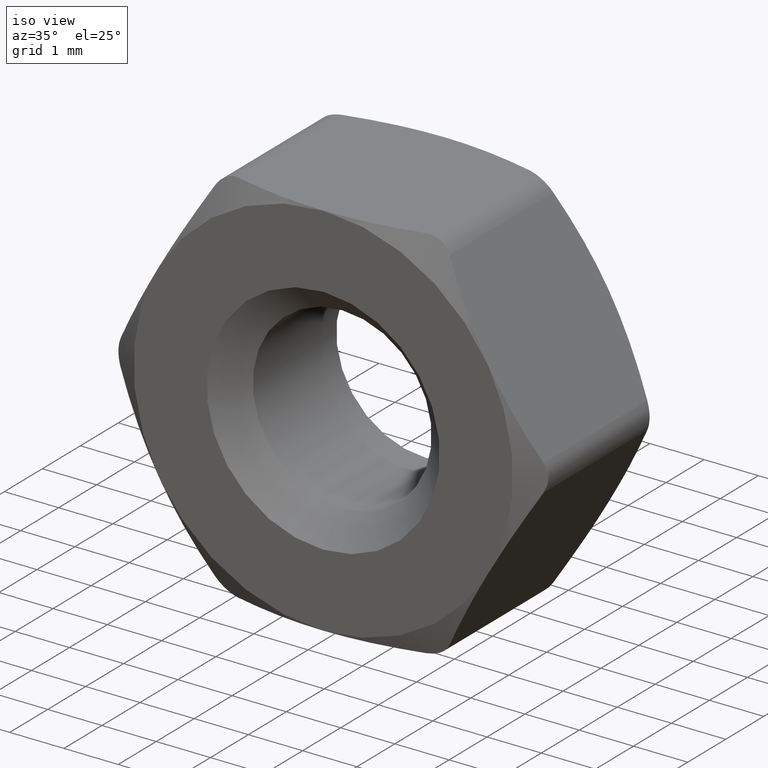
[diagram: clean part render]
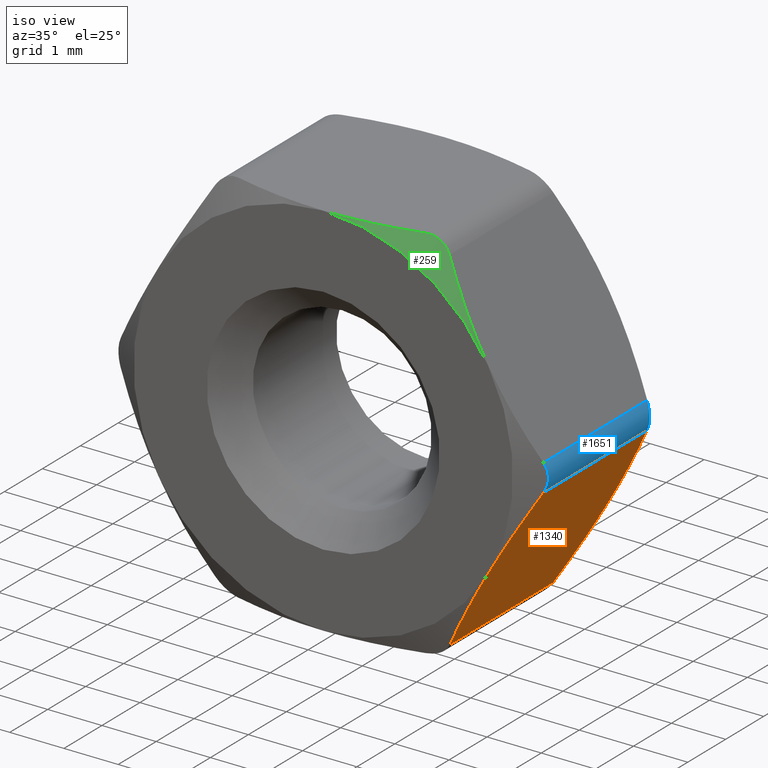
[diagram: same view with three faces highlighted in distinct colors, each labeled with its STEP entity id]
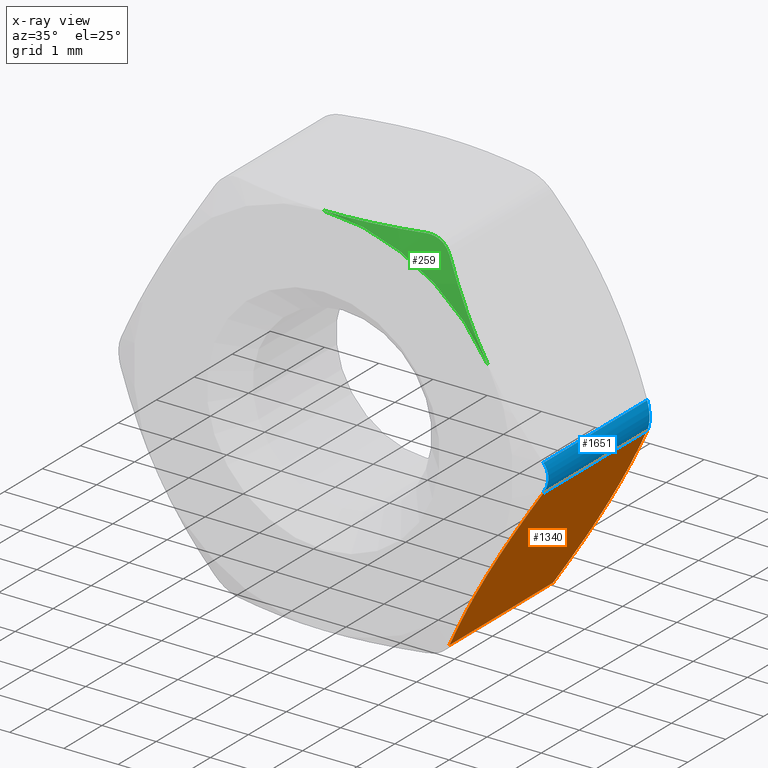
[diagram: x-ray of the same camera — body ghosted, the three highlighted faces saturated]
A machine part, iso view with three faces highlighted in distinct colors.
The next image is the same camera in x-ray (body ghosted, the three faces saturated) — at least one of them is partly hidden behind the body in this view.
Their STEP definitions:

[orange] entity #1340 — the highlighted planar face has unit normal (-0.866, 0, 0.5).
#8 = CARTESIAN_POINT ( 'NONE',  ( 3.755510572827375900, 1.438623072130314200, -0.4952648795008763300 ) ) ;
#100 = ORIENTED_EDGE ( 'NONE', *, *, #1420, .T. ) ;
#146 = B_SPLINE_CURVE_WITH_KNOTS ( 'NONE', 3,
 ( #1572, #1889, #465, #928 ),
 .UNSPECIFIED., .F., .F.,
 ( 4, 4 ),
 ( 0.0002971722857521893900, 0.002044882221487533200 ),
 .UNSPECIFIED. ) ;
#156 = CARTESIAN_POINT ( 'NONE',  ( 3.897114317033258500, -1.366101065750564100, -0.2499999999943001400 ) ) ;
#209 = CARTESIAN_POINT ( 'NONE',  ( 3.897114317029971800, 1.366101065752247200, -0.2499999999999927000 ) ) ;
#331 = VERTEX_POINT ( 'NONE', #997 ) ;
#334 = CARTESIAN_POINT ( 'NONE',  ( 3.612771519549222300, 1.497437231825316000, -0.7424961720029192900 ) ) ;
#352 = FACE_OUTER_BOUND ( 'NONE', #1218, .T. ) ;
#358 = VERTEX_POINT ( 'NONE', #209 ) ;
#360 = EDGE_CURVE ( 'NONE', #841, #331, #607, .T. ) ;
#465 = CARTESIAN_POINT ( 'NONE',  ( 2.736813175116610300, 1.600000000000004800, -2.259700529874122800 ) ) ;
#470 = CARTESIAN_POINT ( 'NONE',  ( 3.031088913245535600, 1.599999999999999900, -1.749999999999998400 ) ) ;
#545 = DIRECTION ( 'NONE',  ( -0.0000000000000000000, 1.000000000000000000, -0.0000000000000000000 ) ) ;
#562 = AXIS2_PLACEMENT_3D ( 'NONE', #1703, #1895, #768 ) ;
#599 = VERTEX_POINT ( 'NONE', #470 ) ;
#607 = B_SPLINE_CURVE_WITH_KNOTS ( 'NONE', 3,
 ( #989, #1801, #689, #1868 ),
 .UNSPECIFIED., .F., .F.,
 ( 4, 4 ),
 ( 0.0002971722857521896000, 0.002044882221487531500 ),
 .UNSPECIFIED. ) ;
#645 = CARTESIAN_POINT ( 'NONE',  ( 2.449406306941841000, -1.497437231825316600, -2.757503827997073800 ) ) ;
#646 = ORIENTED_EDGE ( 'NONE', *, *, #1599, .T. ) ;
#688 = ORIENTED_EDGE ( 'NONE', *, *, #914, .T. ) ;
#689 = CARTESIAN_POINT ( 'NONE',  ( 3.325364651374453000, -1.600000000000004500, -1.240299470125870300 ) ) ;
#768 = DIRECTION ( 'NONE',  ( 0.4999999999999997800, 0.0000000000000000000, 0.8660254037844387100 ) ) ;
#814 = CARTESIAN_POINT ( 'NONE',  ( 2.737935425120993300, -1.578227301213956900, -2.257756735847737500 ) ) ;
#841 = VERTEX_POINT ( 'NONE', #156 ) ;
#843 = VERTEX_POINT ( 'NONE', #2064 ) ;
#914 = EDGE_CURVE ( 'NONE', #599, #358, #1823, .T. ) ;
#928 = CARTESIAN_POINT ( 'NONE',  ( 3.031088913245535600, 1.599999999999999900, -1.749999999999998400 ) ) ;
#942 = CARTESIAN_POINT ( 'NONE',  ( 3.324242401370070400, 1.578227301213956900, -1.242243264152256700 ) ) ;
#967 = CARTESIAN_POINT ( 'NONE',  ( 3.897114317029971800, 1.366101065752247200, -0.2499999999999927000 ) ) ;
#989 = CARTESIAN_POINT ( 'NONE',  ( 3.897114317033258500, -1.366101065750564100, -0.2499999999943001400 ) ) ;
#997 = CARTESIAN_POINT ( 'NONE',  ( 3.031088913245535600, -1.599999999999999900, -1.749999999999998400 ) ) ;
#1081 = B_SPLINE_CURVE_WITH_KNOTS ( 'NONE', 3,
 ( #1925, #1129, #814, #645, #1433, #1937 ),
 .UNSPECIFIED., .F., .F.,
 ( 4, 2, 4 ),
 ( 0.002044882221487531500, 0.002915149854128587000, 0.003785417486769642500 ),
 .UNSPECIFIED. ) ;
#1129 = CARTESIAN_POINT ( 'NONE',  ( 2.884555072172297700, -1.600000000000004300, -2.003804057767061100 ) ) ;
#1182 = CARTESIAN_POINT ( 'NONE',  ( 2.165063509461090600, -1.366101065752247000, -3.250000000000001800 ) ) ;
#1218 = EDGE_LOOP ( 'NONE', ( #688, #100, #1406, #646, #1318, #1719 ) ) ;
#1238 = VECTOR ( 'NONE', #1251, 1000.000000000000000 ) ;
#1251 = DIRECTION ( 'NONE',  ( 0.0000000000000000000, -1.000000000000000000, 0.0000000000000000000 ) ) ;
#1312 = VECTOR ( 'NONE', #545, 1000.000000000000000 ) ;
#1318 = ORIENTED_EDGE ( 'NONE', *, *, #2022, .T. ) ;
#1340 = ADVANCED_FACE ( 'NONE', ( #352 ), #1687, .F. ) ;
#1395 = CARTESIAN_POINT ( 'NONE',  ( 3.031088913245535600, 1.599999999999999900, -1.749999999999998400 ) ) ;
#1406 = ORIENTED_EDGE ( 'NONE', *, *, #360, .T. ) ;
#1420 = EDGE_CURVE ( 'NONE', #358, #841, #1635, .T. ) ;
#1433 = CARTESIAN_POINT ( 'NONE',  ( 2.306667253663686100, -1.438623072130314400, -3.004735120499118400 ) ) ;
#1488 = EDGE_CURVE ( 'NONE', #843, #599, #146, .T. ) ;
#1572 = CARTESIAN_POINT ( 'NONE',  ( 2.165063509457803900, 1.366101065750563700, -3.250000000005694100 ) ) ;
#1599 = EDGE_CURVE ( 'NONE', #331, #1967, #1081, .T. ) ;
#1635 = LINE ( 'NONE', #2051, #1238 ) ;
#1639 = CARTESIAN_POINT ( 'NONE',  ( 2.165063509461091100, 1.600000000000000100, -3.250000000000000900 ) ) ;
#1687 = PLANE ( 'NONE',  #562 ) ;
#1703 = CARTESIAN_POINT ( 'NONE',  ( 4.041451884327378800, 1.600000000000000100, 7.372497420983751600E-015 ) ) ;
#1719 = ORIENTED_EDGE ( 'NONE', *, *, #1488, .T. ) ;
#1735 = CARTESIAN_POINT ( 'NONE',  ( 3.177622754318765200, 1.600000000000004300, -1.496195942232931600 ) ) ;
#1736 = LINE ( 'NONE', #1639, #1312 ) ;
#1801 = CARTESIAN_POINT ( 'NONE',  ( 3.613280654127128500, -1.511465772224716500, -0.7416143250460958100 ) ) ;
#1823 = B_SPLINE_CURVE_WITH_KNOTS ( 'NONE', 3,
 ( #1395, #1735, #942, #334, #8, #967 ),
 .UNSPECIFIED., .F., .F.,
 ( 4, 2, 4 ),
 ( 0.002044882221487533200, 0.002915149854128587900, 0.003785417486769642100 ),
 .UNSPECIFIED. ) ;
#1868 = CARTESIAN_POINT ( 'NONE',  ( 3.031088913245535600, -1.599999999999999900, -1.749999999999998400 ) ) ;
#1889 = CARTESIAN_POINT ( 'NONE',  ( 2.448897172363934300, 1.511465772224716500, -2.758385674953897700 ) ) ;
#1895 = DIRECTION ( 'NONE',  ( -0.8660254037844388200, 0.0000000000000000000, 0.4999999999999998300 ) ) ;
#1925 = CARTESIAN_POINT ( 'NONE',  ( 3.031088913245535600, -1.599999999999999900, -1.749999999999998400 ) ) ;
#1937 = CARTESIAN_POINT ( 'NONE',  ( 2.165063509461090600, -1.366101065752247000, -3.250000000000001800 ) ) ;
#1967 = VERTEX_POINT ( 'NONE', #1182 ) ;
#2022 = EDGE_CURVE ( 'NONE', #1967, #843, #1736, .T. ) ;
#2051 = CARTESIAN_POINT ( 'NONE',  ( 3.897114317029971800, 1.600000000000000100, -0.2499999999999928400 ) ) ;
#2064 = CARTESIAN_POINT ( 'NONE',  ( 2.165063509457803900, 1.366101065750563700, -3.250000000005694100 ) ) ;

[blue] entity #1651 — the highlighted cylindrical surface (edge-blend (fillet) strip) has radius 0.5 mm, axis along (0, -1, 0).
#23 = DIRECTION ( 'NONE',  ( 0.0000000000000000000, -1.000000000000000000, 0.0000000000000000000 ) ) ;
#65 = CARTESIAN_POINT ( 'NONE',  ( 3.964175597709122200, 1.332013481293493800, -0.08746360672527914200 ) ) ;
#66 = EDGE_CURVE ( 'NONE', #1296, #1595, #671, .T. ) ;
#103 = CARTESIAN_POINT ( 'NONE',  ( 3.897114317033258500, -1.366101065750564100, -0.2499999999943001400 ) ) ;
#156 = CARTESIAN_POINT ( 'NONE',  ( 3.897114317033258500, -1.366101065750564100, -0.2499999999943001400 ) ) ;
#167 = CARTESIAN_POINT ( 'NONE',  ( 3.897114317033258500, 1.366101065750563400, 0.2499999999943144400 ) ) ;
#209 = CARTESIAN_POINT ( 'NONE',  ( 3.897114317029971800, 1.366101065752247200, -0.2499999999999927000 ) ) ;
#228 = CARTESIAN_POINT ( 'NONE',  ( 3.897114317029971800, 1.366101065752247200, -0.2499999999999927000 ) ) ;
#358 = VERTEX_POINT ( 'NONE', #209 ) ;
#410 = CARTESIAN_POINT ( 'NONE',  ( 3.940208332958567500, 1.344030572379143700, -0.1753589749094866800 ) ) ;
#457 = CARTESIAN_POINT ( 'NONE',  ( 3.897114317029971800, -1.366101065752246800, 0.2500000000000067700 ) ) ;
#467 = B_SPLINE_CURVE_WITH_KNOTS ( 'NONE', 3,
 ( #1598, #1277, #1683, #65, #410, #228 ),
 .UNSPECIFIED., .F., .F.,
 ( 4, 2, 4 ),
 ( 7.203807182847987800E-015, 0.0002632573935182436300, 0.0005265147870292833900 ),
 .UNSPECIFIED. ) ;
#498 = CARTESIAN_POINT ( 'NONE',  ( 3.897114317029972200, 1.600000000000000100, 0.2500000000000062700 ) ) ;
#506 = FACE_OUTER_BOUND ( 'NONE', #1910, .T. ) ;
#671 = LINE ( 'NONE', #498, #1565 ) ;
#694 = AXIS2_PLACEMENT_3D ( 'NONE', #1753, #23, #1307 ) ;
#717 = ORIENTED_EDGE ( 'NONE', *, *, #66, .F. ) ;
#751 = CARTESIAN_POINT ( 'NONE',  ( 3.964027276540659500, -1.332088313469197600, -0.08830743806187614500 ) ) ;
#841 = VERTEX_POINT ( 'NONE', #156 ) ;
#973 = ORIENTED_EDGE ( 'NONE', *, *, #1003, .F. ) ;
#1003 = EDGE_CURVE ( 'NONE', #1595, #358, #467, .T. ) ;
#1046 = B_SPLINE_CURVE_WITH_KNOTS ( 'NONE', 3,
 ( #103, #1550, #751, #1538, #1391, #457 ),
 .UNSPECIFIED., .F., .F.,
 ( 4, 2, 4 ),
 ( 7.203807182847987800E-015, 0.0002632573935182434100, 0.0005265147870292829500 ),
 .UNSPECIFIED. ) ;
#1062 = CARTESIAN_POINT ( 'NONE',  ( 3.897114317029971800, -1.366101065752246800, 0.2500000000000067700 ) ) ;
#1124 = ORIENTED_EDGE ( 'NONE', *, *, #1249, .F. ) ;
#1238 = VECTOR ( 'NONE', #1251, 1000.000000000000000 ) ;
#1249 = EDGE_CURVE ( 'NONE', #841, #1296, #1046, .T. ) ;
#1251 = DIRECTION ( 'NONE',  ( 0.0000000000000000000, -1.000000000000000000, 0.0000000000000000000 ) ) ;
#1277 = CARTESIAN_POINT ( 'NONE',  ( 3.940195820242970500, 1.344036980738206400, 0.1753806475686512100 ) ) ;
#1296 = VERTEX_POINT ( 'NONE', #1062 ) ;
#1307 = DIRECTION ( 'NONE',  ( 0.0000000000000000000, 0.0000000000000000000, -1.000000000000000000 ) ) ;
#1391 = CARTESIAN_POINT ( 'NONE',  ( 3.940208332958567500, -1.344030572379143000, 0.1753589749095008100 ) ) ;
#1420 = EDGE_CURVE ( 'NONE', #358, #841, #1635, .T. ) ;
#1538 = CARTESIAN_POINT ( 'NONE',  ( 3.964175597709122200, -1.332013481293493800, 0.08746360672529320000 ) ) ;
#1550 = CARTESIAN_POINT ( 'NONE',  ( 3.940195820242970500, -1.344036980738206900, -0.1753806475686369400 ) ) ;
#1565 = VECTOR ( 'NONE', #1780, 1000.000000000000000 ) ;
#1595 = VERTEX_POINT ( 'NONE', #167 ) ;
#1598 = CARTESIAN_POINT ( 'NONE',  ( 3.897114317033258500, 1.366101065750563400, 0.2499999999943144400 ) ) ;
#1611 = CYLINDRICAL_SURFACE ( 'NONE', #694, 0.5000000000000000000 ) ;
#1615 = ORIENTED_EDGE ( 'NONE', *, *, #1420, .F. ) ;
#1635 = LINE ( 'NONE', #2051, #1238 ) ;
#1651 = ADVANCED_FACE ( 'NONE', ( #506 ), #1611, .T. ) ;
#1683 = CARTESIAN_POINT ( 'NONE',  ( 3.964027276540659500, 1.332088313469197200, 0.08830743806189024500 ) ) ;
#1753 = CARTESIAN_POINT ( 'NONE',  ( 3.464101615137752600, 1.600000000000000100, 6.993104012531503600E-015 ) ) ;
#1780 = DIRECTION ( 'NONE',  ( -0.0000000000000000000, 1.000000000000000000, -0.0000000000000000000 ) ) ;
#1910 = EDGE_LOOP ( 'NONE', ( #973, #717, #1124, #1615 ) ) ;
#2051 = CARTESIAN_POINT ( 'NONE',  ( 3.897114317029971800, 1.600000000000000100, -0.2499999999999928400 ) ) ;

[green] entity #259 — the highlighted conical surface has half-angle 60 deg.
#74 = CARTESIAN_POINT ( 'NONE',  ( 1.732050807568877900, -1.366101065752247400, 3.499999999999996400 ) ) ;
#87 = B_SPLINE_CURVE_WITH_KNOTS ( 'NONE', 3,
 ( #422, #567, #1813, #864, #1667, #1030 ),
 .UNSPECIFIED., .F., .F.,
 ( 4, 2, 4 ),
 ( 0.005649497393985549800, 0.006522242504333326100, 0.007394987614681101600 ),
 .UNSPECIFIED. ) ;
#132 = EDGE_CURVE ( 'NONE', #509, #1466, #1255, .T. ) ;
#152 = CARTESIAN_POINT ( 'NONE',  ( 3.031088913245533900, -1.599999999999999900, 1.750000000000001800 ) ) ;
#166 = CARTESIAN_POINT ( 'NONE',  ( 2.165063509457813200, -1.366101065750563000, 3.250000000005689200 ) ) ;
#259 = ADVANCED_FACE ( 'NONE', ( #1462 ), #1434, .T. ) ;
#271 = DIRECTION ( 'NONE',  ( -2.116531817430027100E-016, -1.000000000000000000, -0.0000000000000000000 ) ) ;
#388 = DIRECTION ( 'NONE',  ( 2.116531817430027100E-016, 1.000000000000000000, 0.0000000000000000000 ) ) ;
#407 = ORIENTED_EDGE ( 'NONE', *, *, #569, .F. ) ;
#422 = CARTESIAN_POINT ( 'NONE',  ( 2.665984106685509400E-015, -1.599999999999999200, 3.500000000000000000 ) ) ;
#509 = VERTEX_POINT ( 'NONE', #2012 ) ;
#535 = EDGE_LOOP ( 'NONE', ( #1051, #770, #1675, #407 ) ) ;
#567 = CARTESIAN_POINT ( 'NONE',  ( 0.2915641519570859600, -1.600000000000000500, 3.499999999999998200 ) ) ;
#569 = EDGE_CURVE ( 'NONE', #1466, #1497, #1196, .T. ) ;
#622 = VERTEX_POINT ( 'NONE', #1582 ) ;
#655 = CARTESIAN_POINT ( 'NONE',  ( 2.448897172363941900, -1.511465772224713800, 2.758385674953896000 ) ) ;
#661 = CARTESIAN_POINT ( 'NONE',  ( 2.736813175116616000, -1.600000000000001000, 2.259700529874124600 ) ) ;
#704 = CARTESIAN_POINT ( 'NONE',  ( 1.818238839426068900, -1.344030572379142600, 3.499999999999997300 ) ) ;
#729 = CARTESIAN_POINT ( 'NONE',  ( -3.386450907888041400E-016, -1.599999999999999200, 0.0000000000000000000 ) ) ;
#770 = ORIENTED_EDGE ( 'NONE', *, *, #1108, .T. ) ;
#852 = AXIS2_PLACEMENT_3D ( 'NONE', #1795, #388, #1653 ) ;
#864 = CARTESIAN_POINT ( 'NONE',  ( 1.166222244035859200, -1.496961481377107100, 3.499999999999996400 ) ) ;
#1030 = CARTESIAN_POINT ( 'NONE',  ( 1.732050807568877900, -1.366101065752247400, 3.499999999999996400 ) ) ;
#1051 = ORIENTED_EDGE ( 'NONE', *, *, #132, .F. ) ;
#1084 = EDGE_CURVE ( 'NONE', #1497, #622, #87, .T. ) ;
#1108 = EDGE_CURVE ( 'NONE', #509, #622, #1229, .T. ) ;
#1140 = CARTESIAN_POINT ( 'NONE',  ( 3.031088913245533900, -1.599999999999999900, 1.750000000000001800 ) ) ;
#1196 = CIRCLE ( 'NONE', #1282, 3.500000000000000000 ) ;
#1229 = B_SPLINE_CURVE_WITH_KNOTS ( 'NONE', 3,
 ( #1996, #1337, #1512, #1677, #704, #74 ),
 .UNSPECIFIED., .F., .F.,
 ( 4, 2, 4 ),
 ( 7.203334719670866100E-015, 0.0002632573935182445000, 0.0005265147870292861000 ),
 .UNSPECIFIED. ) ;
#1255 = B_SPLINE_CURVE_WITH_KNOTS ( 'NONE', 3,
 ( #166, #655, #661, #1140 ),
 .UNSPECIFIED., .F., .F.,
 ( 4, 4 ),
 ( 0.0002971722857521889000, 0.002044882221487520200 ),
 .UNSPECIFIED. ) ;
#1282 = AXIS2_PLACEMENT_3D ( 'NONE', #729, #271, #1706 ) ;
#1337 = CARTESIAN_POINT ( 'NONE',  ( 2.121982006248101600, -1.344036980738205800, 3.324619352431354100 ) ) ;
#1411 = CARTESIAN_POINT ( 'NONE',  ( 2.665984106685509400E-015, -1.599999999999999200, 3.500000000000000000 ) ) ;
#1434 = CONICAL_SURFACE ( 'NONE', #852, 3.500000000000000000, 1.047197551196603200 ) ;
#1462 = FACE_OUTER_BOUND ( 'NONE', #535, .T. ) ;
#1466 = VERTEX_POINT ( 'NONE', #152 ) ;
#1497 = VERTEX_POINT ( 'NONE', #1411 ) ;
#1512 = CARTESIAN_POINT ( 'NONE',  ( 2.058490122975044700, -1.332088313469196100, 3.388794603747710400 ) ) ;
#1582 = CARTESIAN_POINT ( 'NONE',  ( 1.732050807568877900, -1.366101065752247400, 3.499999999999996400 ) ) ;
#1653 = DIRECTION ( 'NONE',  ( 1.000000000000000000, -1.858632295689436100E-016, 0.0000000000000000000 ) ) ;
#1667 = CARTESIAN_POINT ( 'NONE',  ( 1.450919357178536400, -1.438091453270224500, 3.499999999999996900 ) ) ;
#1675 = ORIENTED_EDGE ( 'NONE', *, *, #1084, .F. ) ;
#1677 = CARTESIAN_POINT ( 'NONE',  ( 1.906342093523853100, -1.332013481293493200, 3.476808576041102100 ) ) ;
#1706 = DIRECTION ( 'NONE',  ( 1.000000000000000000, -1.858632295689436100E-016, 0.0000000000000000000 ) ) ;
#1795 = CARTESIAN_POINT ( 'NONE',  ( -3.386450907888041400E-016, -1.599999999999999200, 0.0000000000000000000 ) ) ;
#1813 = CARTESIAN_POINT ( 'NONE',  ( 0.5869129818520786300, -1.578217763438089200, 3.499999999999998700 ) ) ;
#1996 = CARTESIAN_POINT ( 'NONE',  ( 2.165063509457813200, -1.366101065750563000, 3.250000000005689200 ) ) ;
#2012 = CARTESIAN_POINT ( 'NONE',  ( 2.165063509457813200, -1.366101065750563000, 3.250000000005689200 ) ) ;